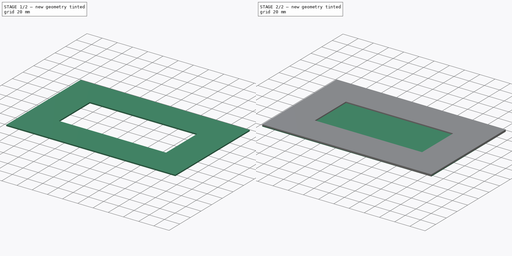
[diagram: build sequence overview — one tinted view per stage of 2, left to right]
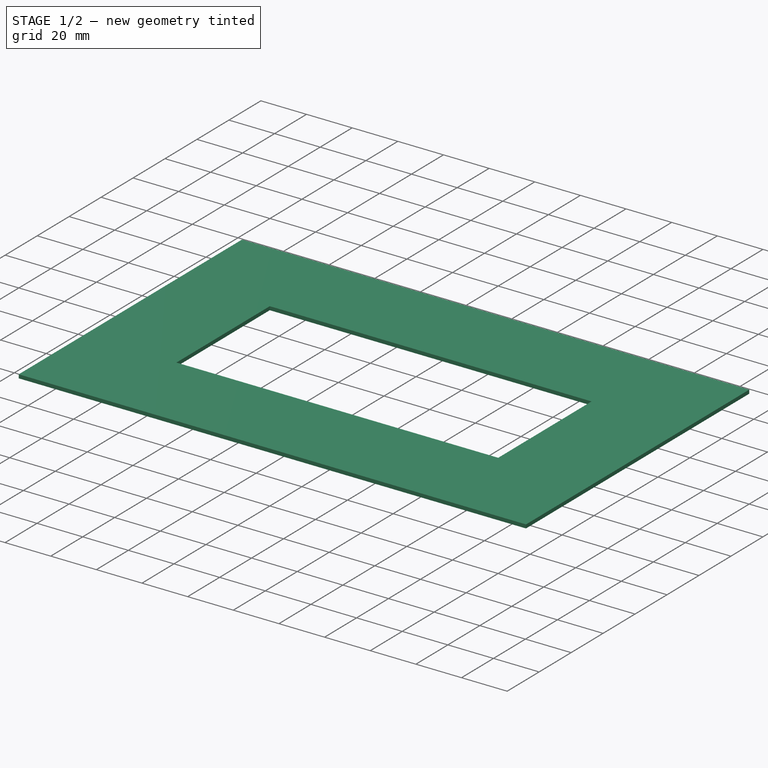
[diagram: stage 1 of 2 — iso view after this stage's code; geometry added in this stage tinted green]
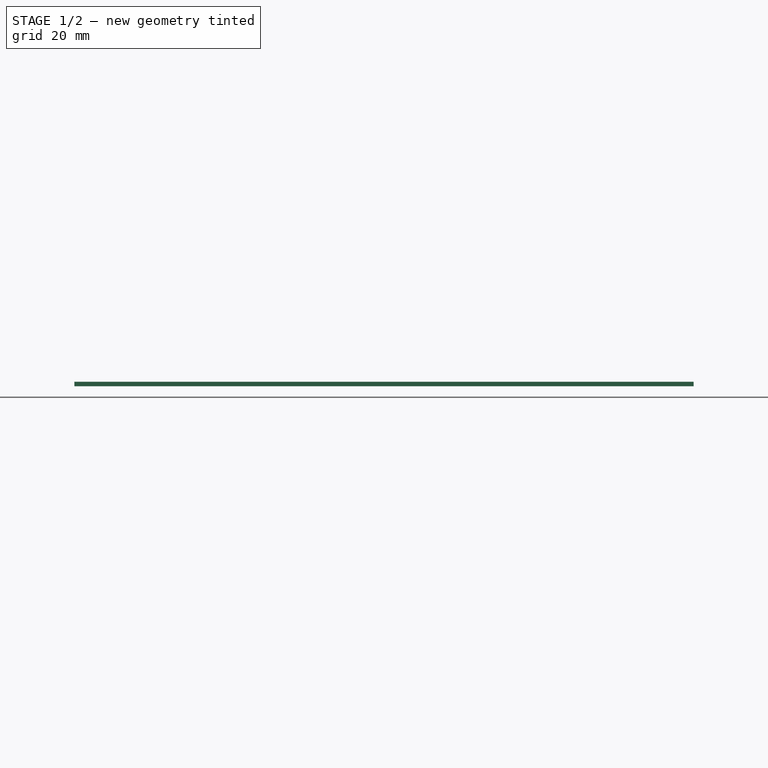
[diagram: stage 1 of 2 — front view after this stage's code; geometry added in this stage tinted green]
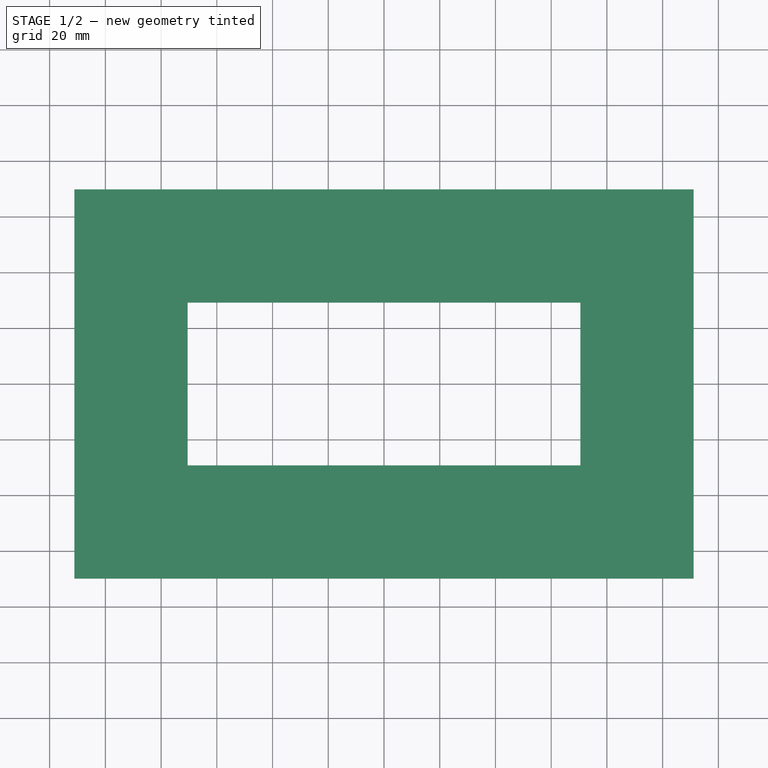
[diagram: stage 1 of 2 — top view after this stage's code; geometry added in this stage tinted green]
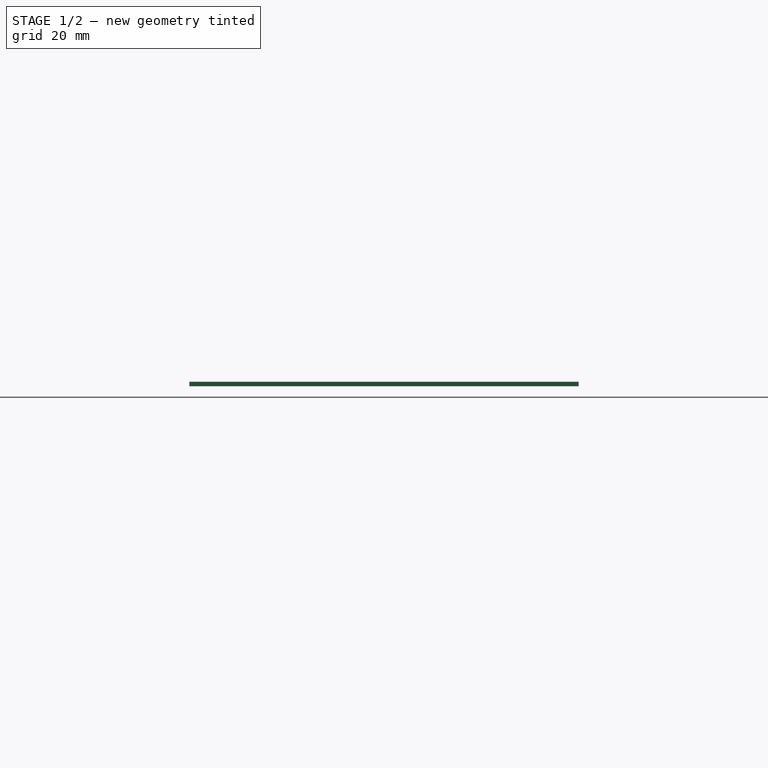
[diagram: stage 1 of 2 — right view after this stage's code; geometry added in this stage tinted green]
FCSTD DOCUMENT  (FreeCAD 0.21R29485 (Git))
Label: SolderMaskStencil
License: All rights reserved
LicenseURL: http://en.wikipedia.org/wiki/All_rights_reserved
objects: Sketcher::SketchObject×2, PartDesign::Pad×2, PartDesign::Body×1
note: 7 computed .brp shape members not serialized (recipe doc carries the construction recipe); baked Part::Feature solids carry a one-line shape summary decoded from their .brp

FEATURE [Sketcher::SketchObject] Sketch
  FullyConstrained = true
  MapMode = 5
  Support = -> [XY_Plane]
  sketch-geometry (10):
    g0: LineSegment StartX=-111.125 StartY=-69.85 StartZ=0 EndX=-111.125 EndY=69.85 EndZ=0
    g1: LineSegment StartX=-111.125 StartY=69.85 StartZ=0 EndX=111.125 EndY=69.85 EndZ=0
    g2: LineSegment StartX=111.125 StartY=69.85 StartZ=0 EndX=111.125 EndY=-69.85 EndZ=0
    g3: LineSegment StartX=111.125 StartY=-69.85 StartZ=0 EndX=-111.125 EndY=-69.85 EndZ=0
    g4: GeomPoint X=0 Y=0 Z=0
    g5: LineSegment StartX=-70.5 StartY=-29.2197 StartZ=0 EndX=-70.5 EndY=29.2197 EndZ=0
    g6: LineSegment StartX=-70.5 StartY=29.2197 StartZ=0 EndX=70.5 EndY=29.2197 EndZ=0
    g7: LineSegment StartX=70.5 StartY=29.2197 StartZ=0 EndX=70.5 EndY=-29.2197 EndZ=0
    g8: LineSegment StartX=70.5 StartY=-29.2197 StartZ=0 EndX=-70.5 EndY=-29.2197 EndZ=0
    g9: GeomPoint X=0 Y=0 Z=0
  constraints (24):
    c: Coincident(g0,g1)
    c: Coincident(g1,g2)
    c: Coincident(g2,g3)
    c: Coincident(g3,g0)
    c: Horizontal(g1)
    c: Horizontal(g3)
    c: Vertical(g0)
    c: Vertical(g2)
    c: Symmetric(g1,g0,g4)
    c: Coincident(g4,g-1)
    c: Distance(g3) = 222.25
    c: Distance(g2) = 139.7
    c: Coincident(g5,g6)
    c: Coincident(g6,g7)
    c: Coincident(g7,g8)
    c: Coincident(g8,g5)
    c: Horizontal(g6)
    c: Horizontal(g8)
    c: Vertical(g5)
    c: Vertical(g7)
    c: Symmetric(g6,g5,g9)
    c: Coincident(g9,g4)
    c: Distance(g8) = 141
    c: Distance(g5) = 58.4393
FEATURE [PartDesign::Pad] Pad
  Direction = (0,0,1)
  Length = 1.6
  Length2 = 10.0076
  Profile = -> Sketch
  ReferenceAxis = -> Sketch [N_Axis]
  Type = 0
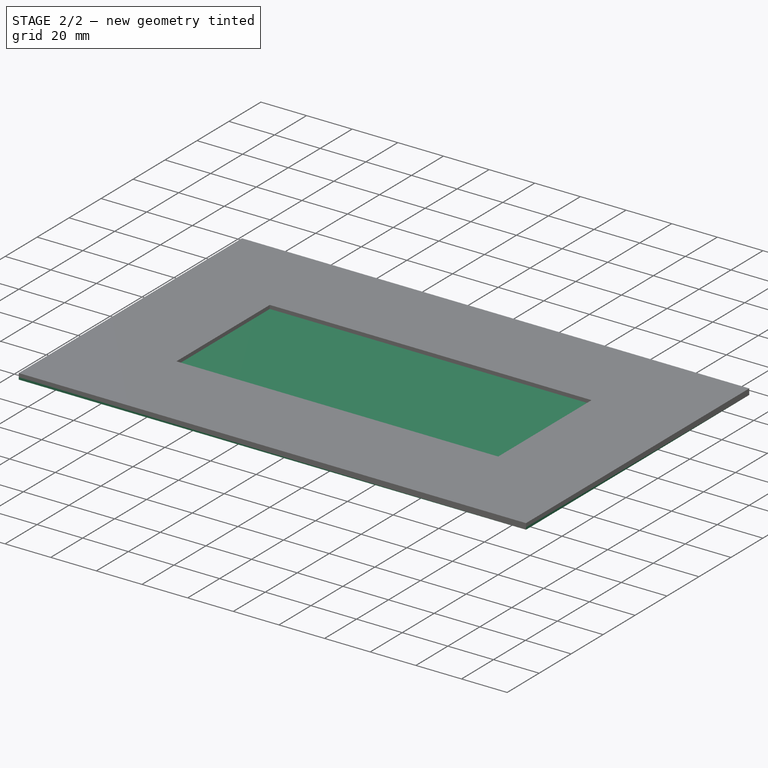
[diagram: stage 2 of 2 — iso view after this stage's code; geometry added in this stage tinted green]
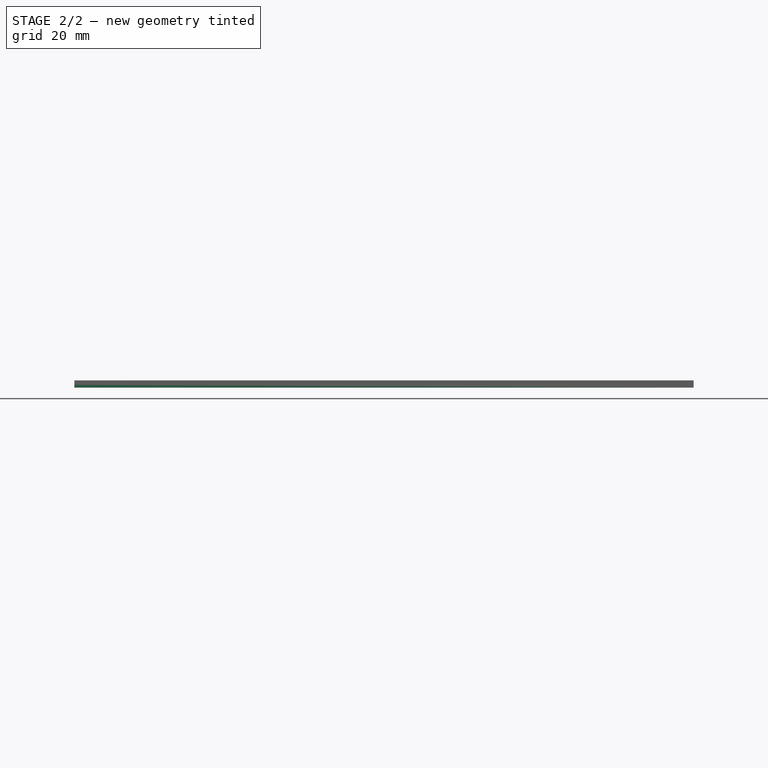
[diagram: stage 2 of 2 — front view after this stage's code; geometry added in this stage tinted green]
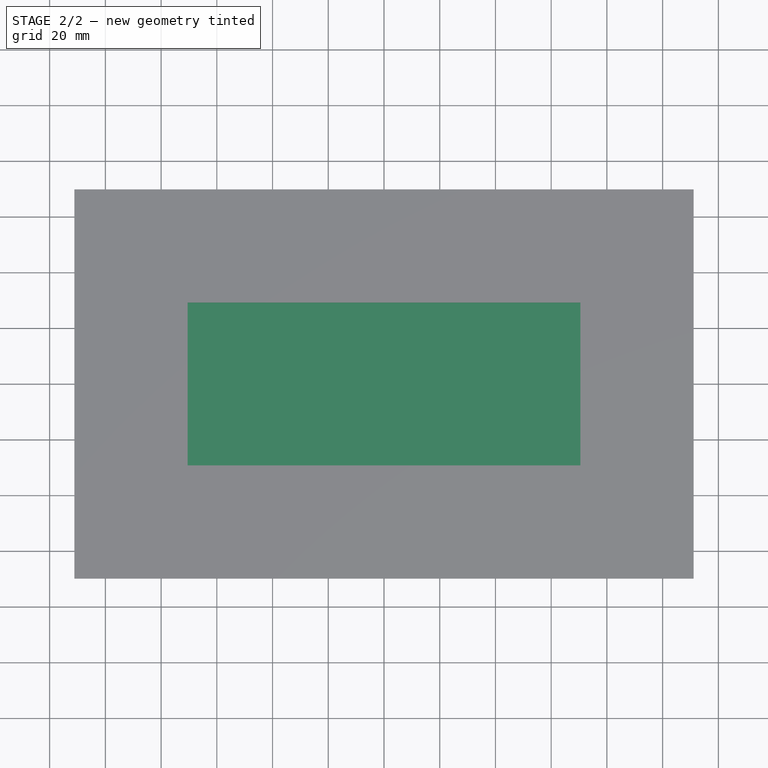
[diagram: stage 2 of 2 — top view after this stage's code; geometry added in this stage tinted green]
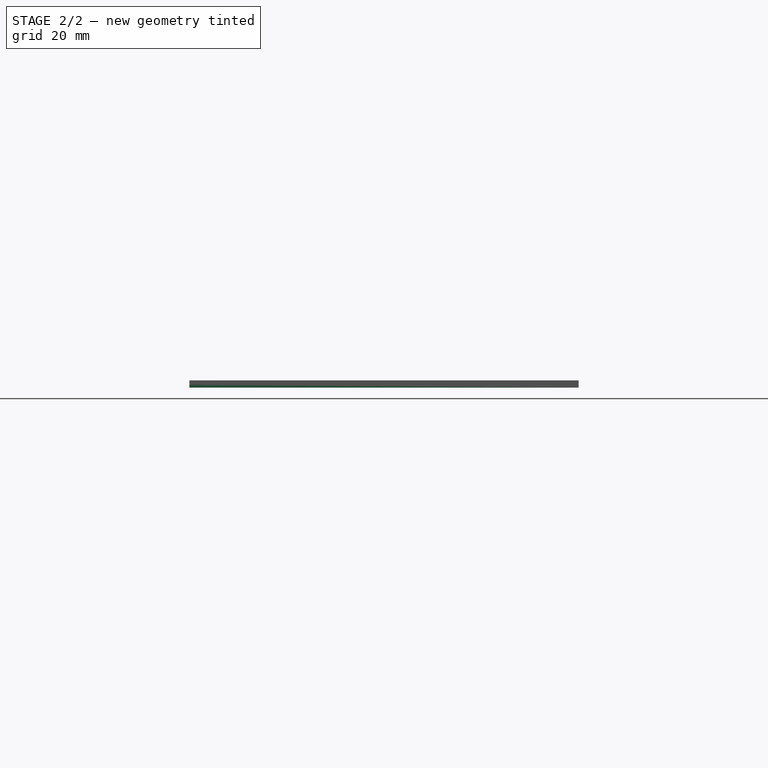
[diagram: stage 2 of 2 — right view after this stage's code; geometry added in this stage tinted green]
FEATURE [Sketcher::SketchObject] Sketch001
  ExternalGeometry = -> [Pad]
  FullyConstrained = true
  MapMode = 5
  Placement = pos=(0,0,0) rot=(1,0,0;3.14159rad)
  Support = -> [Pad]
  sketch-geometry (4):
    g0: LineSegment StartX=111.125 StartY=69.85 StartZ=0 EndX=-111.125 EndY=69.85 EndZ=0
    g1: LineSegment StartX=-111.125 StartY=69.85 StartZ=0 EndX=-111.125 EndY=-69.85 EndZ=0
    g2: LineSegment StartX=-111.125 StartY=-69.85 StartZ=0 EndX=111.125 EndY=-69.85 EndZ=0
    g3: LineSegment StartX=111.125 StartY=-69.85 StartZ=0 EndX=111.125 EndY=69.85 EndZ=0
  constraints (10):
    c: Coincident(g0,g1)
    c: Coincident(g1,g2)
    c: Coincident(g2,g3)
    c: Coincident(g3,g0)
    c: Horizontal(g0)
    c: Horizontal(g2)
    c: Vertical(g1)
    c: Vertical(g3)
    c: Coincident(g0,g-3)
    c: Coincident(g1,g-4)
FEATURE [PartDesign::Pad] Pad001
  BaseFeature = -> Pad
  Direction = (0,0,-1)
  Length = 1
  Length2 = 10.0076
  Profile = -> Sketch001
  ReferenceAxis = -> Sketch001 [N_Axis]
  Type = 0
FEATURE [PartDesign::Body] Body  label="SolderMaskStencilBody"
  Group = -> [Sketch,Pad,Sketch001,Pad001]
  Origin = -> Origin
  Tip = -> Pad001
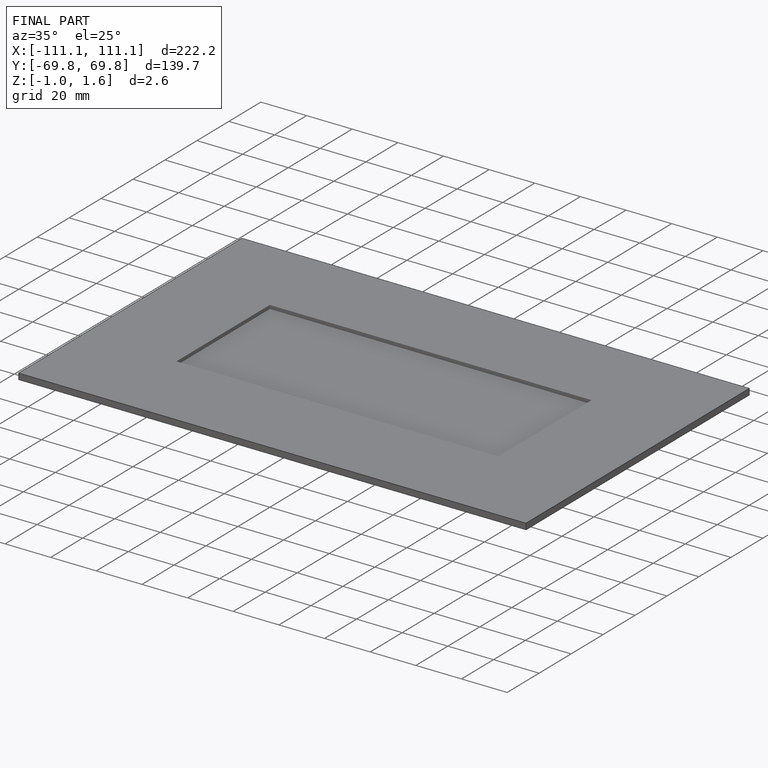
[diagram: finished part — iso view with bounding-box wireframe]
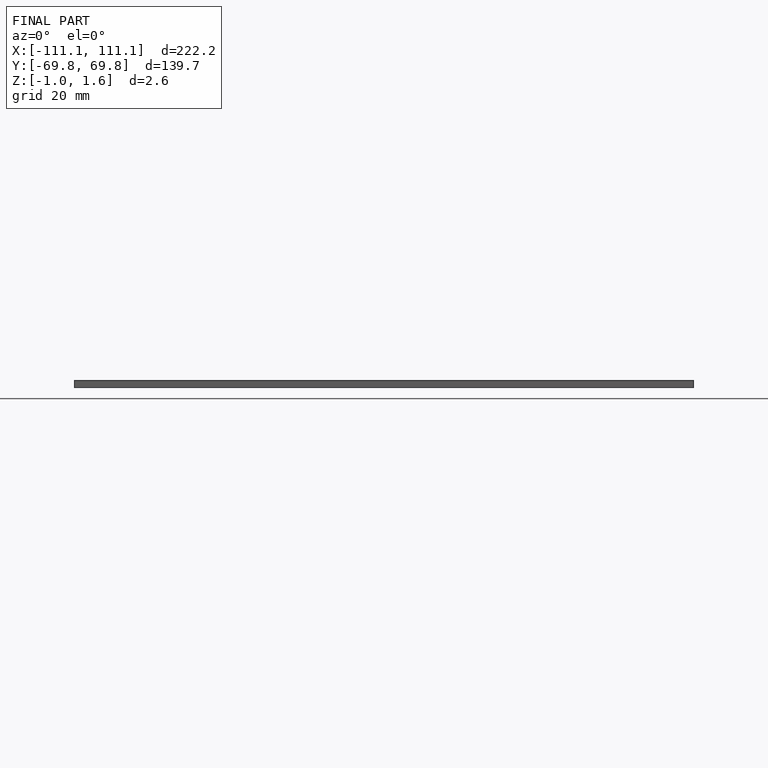
[diagram: finished part — front view with bounding-box wireframe]
